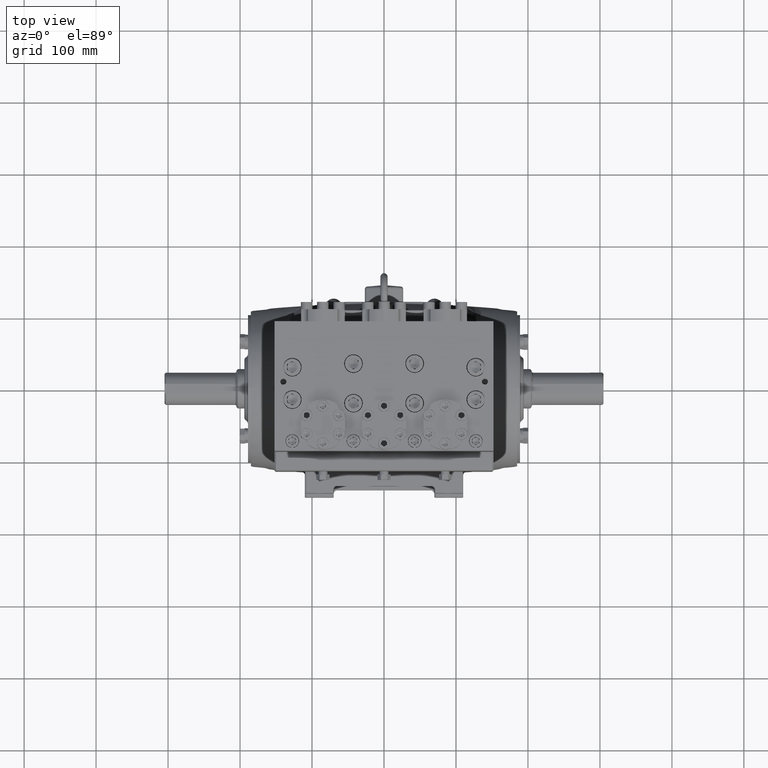
[diagram: clean part render]
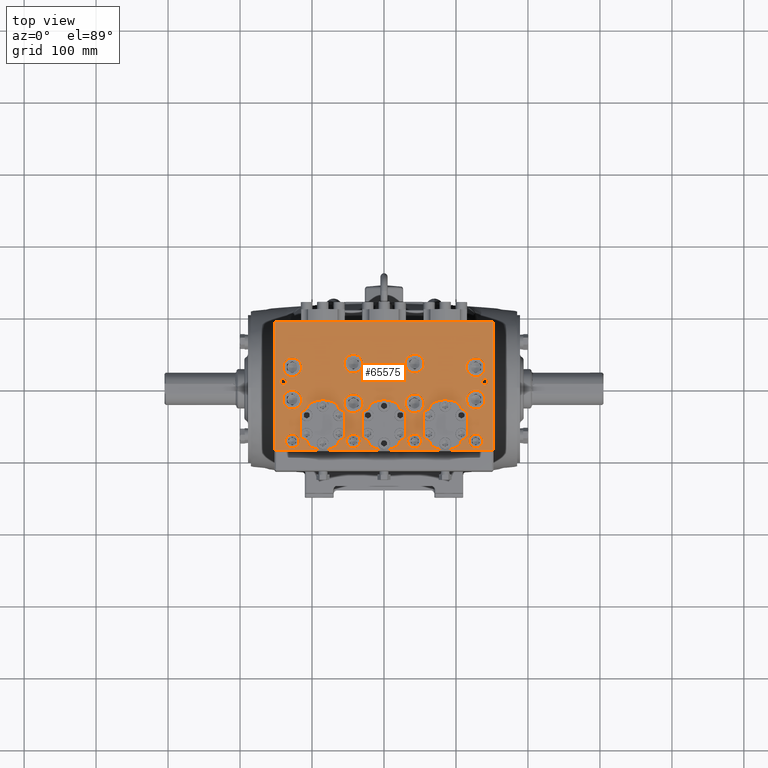
[diagram: same view with one face highlighted and labeled with its STEP entity id]
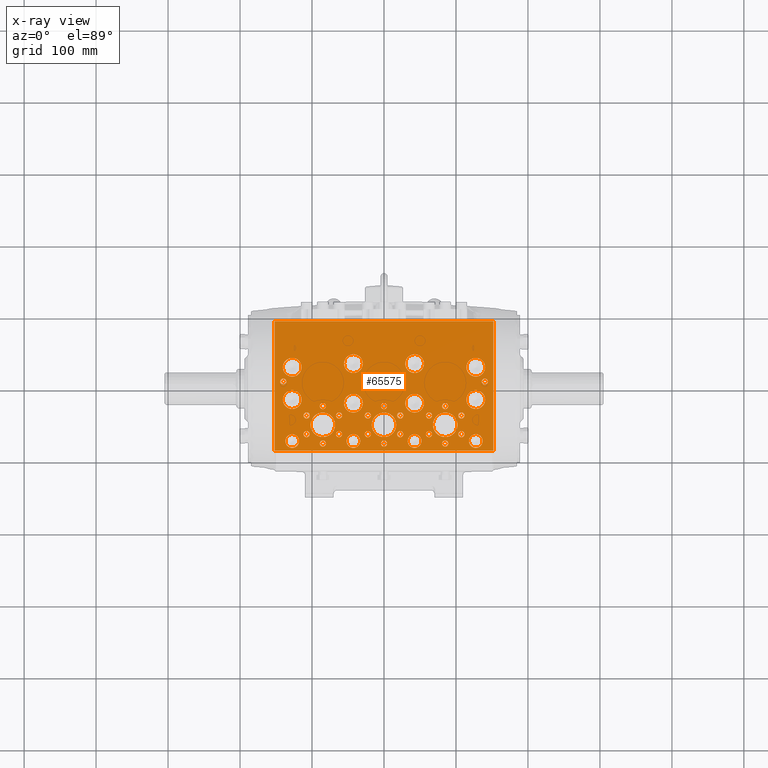
[diagram: x-ray of the same camera — body ghosted, the highlighted face saturated]
A machine part, top view. The second image highlights one B-rep face of the part: STEP entity #65575.
The next image is the same camera in x-ray: the body ghosted, the highlighted face saturated — about 0% of this face is hidden behind the body in this view.
In plain terms, the highlighted planar face has unit normal (0, 0, -1).
Its self-contained STEP definition (entity closure, byte-faithful):
#186 = FACE_BOUND ( 'NONE', #15405, .T. ) ;
#436 = DIRECTION ( 'NONE',  ( -0.000000000000000000, -0.000000000000000000, 1.000000000000000000 ) ) ;
#551 = DIRECTION ( 'NONE',  ( -0.000000000000000000, -0.000000000000000000, 1.000000000000000000 ) ) ;
#571 = CARTESIAN_POINT ( 'NONE',  ( 2.047244094488192001, -3.248031496062991241, 22.44094488188976655 ) ) ;
#707 = DIRECTION ( 'NONE',  ( 1.000000000000000000, 0.000000000000000000, 0.000000000000000000 ) ) ;
#882 = DIRECTION ( 'NONE',  ( 0.000000000000000000, 0.000000000000000000, 1.000000000000000000 ) ) ;
#921 = CIRCLE ( 'NONE', #37884, 0.6692913385826771977 ) ;
#983 = FACE_BOUND ( 'NONE', #44020, .T. ) ;
#1034 = DIRECTION ( 'NONE',  ( 1.000000000000000000, 0.000000000000000000, 0.000000000000000000 ) ) ;
#1074 = ORIENTED_EDGE ( 'NONE', *, *, #57729, .F. ) ;
#1366 = CARTESIAN_POINT ( 'NONE',  ( -5.679133858267713997, 1.113230334853013210E-15, 22.44094488188976655 ) ) ;
#1397 = PLANE ( 'NONE',  #16785 ) ;
#1461 = AXIS2_PLACEMENT_3D ( 'NONE', #71583, #77375, #1809 ) ;
#1476 = DIRECTION ( 'NONE',  ( -0.000000000000000000, -0.000000000000000000, 1.000000000000000000 ) ) ;
#1660 = CARTESIAN_POINT ( 'NONE',  ( 5.019685039370082258, -3.248031496062991241, 22.44094488188976655 ) ) ;
#1698 = CARTESIAN_POINT ( 'NONE',  ( 2.458353549041431401E-15, -2.362204724409447731, 22.44094488188976655 ) ) ;
#1809 = DIRECTION ( 'NONE',  ( 1.000000000000000000, 0.000000000000000000, 0.000000000000000000 ) ) ;
#1820 = DIRECTION ( 'NONE',  ( 1.000000000000000000, 0.000000000000000000, 0.000000000000000000 ) ) ;
#1846 = CARTESIAN_POINT ( 'NONE',  ( -1.053805531432888021, -1.850393700787402951, 22.44094488188976655 ) ) ;
#1917 = ORIENTED_EDGE ( 'NONE', *, *, #54976, .F. ) ;
#2104 = EDGE_CURVE ( 'NONE', #71356, #14807, #6092, .T. ) ;
#2182 = CIRCLE ( 'NONE', #81318, 0.1673228346456689108 ) ;
#2665 = DIRECTION ( 'NONE',  ( -0.000000000000000000, -0.000000000000000000, 1.000000000000000000 ) ) ;
#2706 = VERTEX_POINT ( 'NONE', #1846 ) ;
#2801 = VERTEX_POINT ( 'NONE', #40646 ) ;
#2853 = EDGE_CURVE ( 'NONE', #6727, #14560, #2182, .T. ) ;
#2897 = DIRECTION ( 'NONE',  ( 1.000000000000000000, 0.000000000000000000, 0.000000000000000000 ) ) ;
#2992 = CIRCLE ( 'NONE', #28561, 0.5118110236220471121 ) ;
#2997 = ORIENTED_EDGE ( 'NONE', *, *, #36746, .F. ) ;
#3007 = EDGE_CURVE ( 'NONE', #24591, #17143, #52311, .T. ) ;
#3066 = VERTEX_POINT ( 'NONE', #43094 ) ;
#3129 = CARTESIAN_POINT ( 'NONE',  ( -4.232939389700606014, -1.850393700787402951, 22.44094488188976655 ) ) ;
#3253 = CARTESIAN_POINT ( 'NONE',  ( 5.344488188976381338, 1.113230334853013210E-15, 22.44094488188976655 ) ) ;
#3417 = VERTEX_POINT ( 'NONE', #5447 ) ;
#3443 = CIRCLE ( 'NONE', #46932, 0.1673228346456689108 ) ;
#3462 = AXIS2_PLACEMENT_3D ( 'NONE', #34506, #23342, #28317 ) ;
#3505 = EDGE_CURVE ( 'NONE', #41159, #64953, #37920, .T. ) ;
#3758 = VERTEX_POINT ( 'NONE', #73054 ) ;
#3816 = ORIENTED_EDGE ( 'NONE', *, *, #40293, .F. ) ;
#3889 = EDGE_CURVE ( 'NONE', #36805, #16910, #65529, .T. ) ;
#4084 = VERTEX_POINT ( 'NONE', #29324 ) ;
#4140 = DIRECTION ( 'NONE',  ( -0.000000000000000000, -0.000000000000000000, 1.000000000000000000 ) ) ;
#4153 = AXIS2_PLACEMENT_3D ( 'NONE', #76851, #882, #76457 ) ;
#4276 = CARTESIAN_POINT ( 'NONE',  ( 2.185039370078742493, -1.181102362204723200, 22.44094488188976655 ) ) ;
#4281 = DIRECTION ( 'NONE',  ( -0.000000000000000000, -0.000000000000000000, 1.000000000000000000 ) ) ;
#4284 = DIRECTION ( 'NONE',  ( -0.000000000000000000, -0.000000000000000000, 1.000000000000000000 ) ) ;
#4356 = EDGE_CURVE ( 'NONE', #59757, #40121, #15517, .T. ) ;
#4464 = EDGE_CURVE ( 'NONE', #77336, #5374, #64279, .T. ) ;
#4492 = DIRECTION ( 'NONE',  ( 1.000000000000000000, 0.000000000000000000, 0.000000000000000000 ) ) ;
#4524 = ORIENTED_EDGE ( 'NONE', *, *, #12949, .F. ) ;
#4616 = DIRECTION ( 'NONE',  ( -0.000000000000000000, -0.000000000000000000, 1.000000000000000000 ) ) ;
#4886 = CARTESIAN_POINT ( 'NONE',  ( 0.6692913385826799733, -2.362204724409447731, 22.44094488188976655 ) ) ;
#4896 = CARTESIAN_POINT ( 'NONE',  ( -0.8864826967872192487, -1.850393700787402951, 22.44094488188976655 ) ) ;
#5215 = CARTESIAN_POINT ( 'NONE',  ( 4.232939389700610455, -2.874015748031493178, 22.44094488188976655 ) ) ;
#5308 = EDGE_CURVE ( 'NONE', #60771, #74494, #67059, .T. ) ;
#5374 = VERTEX_POINT ( 'NONE', #28544 ) ;
#5447 = CARTESIAN_POINT ( 'NONE',  ( 3.513779527559057758, -1.338582677165353285, 22.44094488188976655 ) ) ;
#5455 = DIRECTION ( 'NONE',  ( -0.000000000000000000, -0.000000000000000000, 1.000000000000000000 ) ) ;
#5527 = CARTESIAN_POINT ( 'NONE',  ( -0.1673228346456658855, -1.338582677165353285, 22.44094488188976655 ) ) ;
#5589 = CARTESIAN_POINT ( 'NONE',  ( 5.511811023622049888, 1.092739197465705287E-15, 22.44094488188976655 ) ) ;
#5692 = EDGE_LOOP ( 'NONE', ( #62205, #10975 ) ) ;
#5726 = EDGE_LOOP ( 'NONE', ( #65434, #33786 ) ) ;
#5884 = DIRECTION ( 'NONE',  ( -0.000000000000000000, -0.000000000000000000, 1.000000000000000000 ) ) ;
#5887 = EDGE_CURVE ( 'NONE', #70674, #52699, #9294, .T. ) ;
#5975 = FACE_BOUND ( 'NONE', #29640, .T. ) ;
#6083 = ORIENTED_EDGE ( 'NONE', *, *, #44143, .F. ) ;
#6092 = CIRCLE ( 'NONE', #13981, 0.5118110236220471121 ) ;
#6103 = CIRCLE ( 'NONE', #43056, 0.5118110236220471121 ) ;
#6136 = EDGE_CURVE ( 'NONE', #64441, #14396, #69932, .T. ) ;
#6150 = VERTEX_POINT ( 'NONE', #22048 ) ;
#6348 = VECTOR ( 'NONE', #66307, 39.37007874015748143 ) ;
#6380 = CIRCLE ( 'NONE', #76219, 0.1673228346456689108 ) ;
#6386 = FACE_BOUND ( 'NONE', #37656, .T. ) ;
#6405 = DIRECTION ( 'NONE',  ( -0.000000000000000000, -0.000000000000000000, 1.000000000000000000 ) ) ;
#6727 = VERTEX_POINT ( 'NONE', #42041 ) ;
#6858 = CARTESIAN_POINT ( 'NONE',  ( 5.019685039370081370, -0.9842519685039360366, 22.44094488188976655 ) ) ;
#6882 = ORIENTED_EDGE ( 'NONE', *, *, #7993, .F. ) ;
#7030 = AXIS2_PLACEMENT_3D ( 'NONE', #6858, #30850, #12257 ) ;
#7186 = AXIS2_PLACEMENT_3D ( 'NONE', #79692, #75137, #23951 ) ;
#7298 = CARTESIAN_POINT ( 'NONE',  ( -4.645669291338579754, -3.248031496062991241, 22.44094488188976655 ) ) ;
#7332 = DIRECTION ( 'NONE',  ( 1.000000000000000000, 0.000000000000000000, 0.000000000000000000 ) ) ;
#7436 = CIRCLE ( 'NONE', #3462, 0.1673228346456689108 ) ;
#7447 = ORIENTED_EDGE ( 'NONE', *, *, #48416, .F. ) ;
#7500 = DIRECTION ( 'NONE',  ( 0.000000000000000000, 0.000000000000000000, 1.000000000000000000 ) ) ;
#7512 = EDGE_LOOP ( 'NONE', ( #71034, #63394 ) ) ;
#7593 = FACE_BOUND ( 'NONE', #72375, .T. ) ;
#7612 = AXIS2_PLACEMENT_3D ( 'NONE', #7988, #26994, #33194 ) ;
#7635 = CARTESIAN_POINT ( 'NONE',  ( -2.292651161480496302, -1.850393700787395401, 22.44094488188976655 ) ) ;
#7707 = DIRECTION ( 'NONE',  ( 1.000000000000000000, 0.000000000000000000, 0.000000000000000000 ) ) ;
#7818 = EDGE_CURVE ( 'NONE', #48106, #38387, #60670, .T. ) ;
#7829 = DIRECTION ( 'NONE',  ( -0.000000000000000000, -0.000000000000000000, 1.000000000000000000 ) ) ;
#7988 = CARTESIAN_POINT ( 'NONE',  ( 2.459973996126171514, -2.874015748031499839, 22.44094488188976655 ) ) ;
#7993 = EDGE_CURVE ( 'NONE', #23329, #63775, #15894, .T. ) ;
#8035 = CARTESIAN_POINT ( 'NONE',  ( -3.346456692913383879, -2.362204724409447731, 22.44094488188976655 ) ) ;
#8123 = CARTESIAN_POINT ( 'NONE',  ( -3.346456692913383435, -3.385826771653542178, 22.44094488188976655 ) ) ;
#8226 = DIRECTION ( 'NONE',  ( 1.000000000000000000, 0.000000000000000000, 0.000000000000000000 ) ) ;
#8666 = CIRCLE ( 'NONE', #19252, 0.3740157480314958427 ) ;
#8709 = CIRCLE ( 'NONE', #49547, 0.1673228346456689108 ) ;
#8759 = ORIENTED_EDGE ( 'NONE', *, *, #35970, .F. ) ;
#8986 = CIRCLE ( 'NONE', #59067, 0.3740157480314958427 ) ;
#9000 = CARTESIAN_POINT ( 'NONE',  ( -5.344488188976377785, 1.092739197465705287E-15, 22.44094488188976655 ) ) ;
#9031 = AXIS2_PLACEMENT_3D ( 'NONE', #31856, #436, #24025 ) ;
#9134 = DIRECTION ( 'NONE',  ( 1.000000000000000000, 0.000000000000000000, 0.000000000000000000 ) ) ;
#9208 = EDGE_CURVE ( 'NONE', #14396, #64441, #27866, .T. ) ;
#9230 = DIRECTION ( 'NONE',  ( 1.000000000000000000, 0.000000000000000000, 0.000000000000000000 ) ) ;
#9271 = DIRECTION ( 'NONE',  ( 1.000000000000000000, 0.000000000000000000, 0.000000000000000000 ) ) ;
#9294 = CIRCLE ( 'NONE', #55425, 0.5118110236220471121 ) ;
#10068 = DIRECTION ( 'NONE',  ( 0.000000000000000000, 0.000000000000000000, 1.000000000000000000 ) ) ;
#10205 = ORIENTED_EDGE ( 'NONE', *, *, #37567, .F. ) ;
#10307 = CARTESIAN_POINT ( 'NONE',  ( 3.513779527559057758, -3.385826771653542178, 22.44094488188976655 ) ) ;
#10586 = CARTESIAN_POINT ( 'NONE',  ( 4.400262224346279893, -2.874015748031493178, 22.44094488188976655 ) ) ;
#10616 = DIRECTION ( 'NONE',  ( -0.000000000000000000, -0.000000000000000000, 1.000000000000000000 ) ) ;
#10709 = ORIENTED_EDGE ( 'NONE', *, *, #9208, .F. ) ;
#10975 = ORIENTED_EDGE ( 'NONE', *, *, #2853, .F. ) ;
#11001 = VERTEX_POINT ( 'NONE', #44329 ) ;
#11552 = DIRECTION ( 'NONE',  ( -0.000000000000000000, -0.000000000000000000, 1.000000000000000000 ) ) ;
#11975 = VERTEX_POINT ( 'NONE', #13053 ) ;
#12051 = ORIENTED_EDGE ( 'NONE', *, *, #58770, .F. ) ;
#12256 = CARTESIAN_POINT ( 'NONE',  ( -0.1673228346456658855, -3.385826771653542178, 22.44094488188976655 ) ) ;
#12257 = DIRECTION ( 'NONE',  ( 1.000000000000000000, 0.000000000000000000, 0.000000000000000000 ) ) ;
#12290 = ORIENTED_EDGE ( 'NONE', *, *, #36052, .F. ) ;
#12358 = CIRCLE ( 'NONE', #36042, 0.6692913385826775308 ) ;
#12410 = EDGE_LOOP ( 'NONE', ( #46230, #74424 ) ) ;
#12579 = FACE_BOUND ( 'NONE', #53299, .T. ) ;
#12755 = CARTESIAN_POINT ( 'NONE',  ( 0.7191598621415519199, -1.850393700787395401, 22.44094488188976655 ) ) ;
#12949 = EDGE_CURVE ( 'NONE', #2801, #70232, #76831, .T. ) ;
#13053 = CARTESIAN_POINT ( 'NONE',  ( -3.179133858267714441, -1.338582677165353285, 22.44094488188976655 ) ) ;
#13223 = CARTESIAN_POINT ( 'NONE',  ( -3.346456692913383435, -1.338582677165353285, 22.44094488188976655 ) ) ;
#13287 = VERTEX_POINT ( 'NONE', #48439 ) ;
#13377 = AXIS2_PLACEMENT_3D ( 'NONE', #5589, #6405, #31604 ) ;
#13502 = DIRECTION ( 'NONE',  ( -0.000000000000000000, -0.000000000000000000, 1.000000000000000000 ) ) ;
#13786 = FACE_BOUND ( 'NONE', #30271, .T. ) ;
#13893 = DIRECTION ( 'NONE',  ( -0.000000000000000000, -0.000000000000000000, 1.000000000000000000 ) ) ;
#13981 = AXIS2_PLACEMENT_3D ( 'NONE', #68082, #11552, #39849 ) ;
#14095 = CIRCLE ( 'NONE', #60206, 0.1673228346456689108 ) ;
#14223 = AXIS2_PLACEMENT_3D ( 'NONE', #55441, #41029, #17102 ) ;
#14396 = VERTEX_POINT ( 'NONE', #44991 ) ;
#14476 = CARTESIAN_POINT ( 'NONE',  ( -2.459973996126161300, -2.874015748031493178, 22.44094488188976655 ) ) ;
#14560 = VERTEX_POINT ( 'NONE', #74263 ) ;
#14636 = CIRCLE ( 'NONE', #52848, 0.3740157480314961203 ) ;
#14674 = VERTEX_POINT ( 'NONE', #31317 ) ;
#14807 = VERTEX_POINT ( 'NONE', #44884 ) ;
#14849 = CARTESIAN_POINT ( 'NONE',  ( -0.6692913385826750883, -2.362204724409447731, 22.44094488188976655 ) ) ;
#14860 = EDGE_LOOP ( 'NONE', ( #22425, #10205 ) ) ;
#14992 = CARTESIAN_POINT ( 'NONE',  ( 5.984251968503938812, -3.779527559055117170, 22.44094488188976655 ) ) ;
#15149 = EDGE_CURVE ( 'NONE', #38387, #48106, #31349, .T. ) ;
#15254 = AXIS2_PLACEMENT_3D ( 'NONE', #61758, #38221, #25030 ) ;
#15328 = CARTESIAN_POINT ( 'NONE',  ( 1.673228346456696158, -3.248031496062991241, 22.44094488188976655 ) ) ;
#15405 = EDGE_LOOP ( 'NONE', ( #50145, #68389 ) ) ;
#15430 = CARTESIAN_POINT ( 'NONE',  ( -1.673228346456690385, -3.248031496062991241, 22.44094488188976655 ) ) ;
#15517 = CIRCLE ( 'NONE', #26101, 0.1673228346456689108 ) ;
#15600 = CARTESIAN_POINT ( 'NONE',  ( -0.8864826967872148078, -2.874015748031499839, 22.44094488188976655 ) ) ;
#15770 = DIRECTION ( 'NONE',  ( 1.000000000000000000, 0.000000000000000000, 0.000000000000000000 ) ) ;
#15783 = CARTESIAN_POINT ( 'NONE',  ( 5.984251968503938812, -3.779527559055117170, 22.44094488188976655 ) ) ;
#15894 = CIRCLE ( 'NONE', #56717, 0.1673228346456689108 ) ;
#15948 = DIRECTION ( 'NONE',  ( -0.000000000000000000, -0.000000000000000000, 1.000000000000000000 ) ) ;
#16002 = EDGE_CURVE ( 'NONE', #81574, #22413, #78950, .T. ) ;
#16085 = CARTESIAN_POINT ( 'NONE',  ( -2.677165354330706570, -2.362204724409447731, 22.44094488188976655 ) ) ;
#16095 = EDGE_CURVE ( 'NONE', #60679, #67057, #55154, .T. ) ;
#16107 = DIRECTION ( 'NONE',  ( -0.000000000000000000, -0.000000000000000000, 1.000000000000000000 ) ) ;
#16154 = CARTESIAN_POINT ( 'NONE',  ( 1.053805531432889797, -1.850393700787395401, 22.44094488188976655 ) ) ;
#16368 = EDGE_CURVE ( 'NONE', #67285, #53264, #16960, .T. ) ;
#16408 = ORIENTED_EDGE ( 'NONE', *, *, #62451, .F. ) ;
#16439 = AXIS2_PLACEMENT_3D ( 'NONE', #39899, #70061, #51475 ) ;
#16690 = DIRECTION ( 'NONE',  ( 1.000000000000000000, 0.000000000000000000, 0.000000000000000000 ) ) ;
#16695 = DIRECTION ( 'NONE',  ( -0.000000000000000000, -0.000000000000000000, 1.000000000000000000 ) ) ;
#16785 = AXIS2_PLACEMENT_3D ( 'NONE', #37769, #25391, #19203 ) ;
#16910 = VERTEX_POINT ( 'NONE', #32578 ) ;
#16960 = CIRCLE ( 'NONE', #27499, 0.1673228346456689108 ) ;
#17003 = DIRECTION ( 'NONE',  ( -0.000000000000000000, -0.000000000000000000, 1.000000000000000000 ) ) ;
#17013 = DIRECTION ( 'NONE',  ( 1.000000000000000000, 0.000000000000000000, 0.000000000000000000 ) ) ;
#17102 = DIRECTION ( 'NONE',  ( 1.000000000000000000, 0.000000000000000000, 0.000000000000000000 ) ) ;
#17143 = VERTEX_POINT ( 'NONE', #9000 ) ;
#17207 = ORIENTED_EDGE ( 'NONE', *, *, #16368, .F. ) ;
#17481 = DIRECTION ( 'NONE',  ( 1.000000000000000000, 0.000000000000000000, 0.000000000000000000 ) ) ;
#17589 = DIRECTION ( 'NONE',  ( -0.000000000000000000, -0.000000000000000000, 1.000000000000000000 ) ) ;
#17912 = CARTESIAN_POINT ( 'NONE',  ( 0.1673228346456719084, -1.338582677165353285, 22.44094488188976655 ) ) ;
#18192 = EDGE_LOOP ( 'NONE', ( #17207, #31949 ) ) ;
#18345 = CARTESIAN_POINT ( 'NONE',  ( 1.673228346456695492, -1.181102362204723200, 22.44094488188976655 ) ) ;
#18353 = AXIS2_PLACEMENT_3D ( 'NONE', #72812, #53790, #47207 ) ;
#18444 = CARTESIAN_POINT ( 'NONE',  ( -1.673228346456690607, -1.181102362204723200, 22.44094488188976655 ) ) ;
#18506 = ORIENTED_EDGE ( 'NONE', *, *, #49728, .F. ) ;
#18604 = AXIS2_PLACEMENT_3D ( 'NONE', #66316, #58492, #20972 ) ;
#18679 = VERTEX_POINT ( 'NONE', #33805 ) ;
#19071 = CIRCLE ( 'NONE', #55941, 0.1673228346456689108 ) ;
#19203 = DIRECTION ( 'NONE',  ( -1.000000000000000000, 0.000000000000000000, -0.000000000000000000 ) ) ;
#19252 = AXIS2_PLACEMENT_3D ( 'NONE', #43222, #36218, #56395 ) ;
#19289 = CARTESIAN_POINT ( 'NONE',  ( 2.677165354330711011, -2.362204724409447731, 22.44094488188976655 ) ) ;
#19327 = CARTESIAN_POINT ( 'NONE',  ( -1.673228346456690385, 0.9842519685039381461, 22.44094488188976655 ) ) ;
#19611 = FACE_BOUND ( 'NONE', #68130, .T. ) ;
#19700 = DIRECTION ( 'NONE',  ( 1.000000000000000000, 0.000000000000000000, 0.000000000000000000 ) ) ;
#19842 = DIRECTION ( 'NONE',  ( 1.000000000000000000, 0.000000000000000000, 0.000000000000000000 ) ) ;
#20014 = FACE_BOUND ( 'NONE', #41745, .T. ) ;
#20022 = DIRECTION ( 'NONE',  ( 1.000000000000000000, 0.000000000000000000, 0.000000000000000000 ) ) ;
#20330 = CARTESIAN_POINT ( 'NONE',  ( -5.019685039370076929, -0.9842519685039360366, 22.44094488188976655 ) ) ;
#20400 = EDGE_CURVE ( 'NONE', #71761, #72192, #29140, .T. ) ;
#20833 = CARTESIAN_POINT ( 'NONE',  ( -5.393700787401572327, -3.248031496062991241, 22.44094488188976655 ) ) ;
#20972 = DIRECTION ( 'NONE',  ( 1.000000000000000000, 0.000000000000000000, 0.000000000000000000 ) ) ;
#20984 = EDGE_CURVE ( 'NONE', #33155, #38133, #14636, .T. ) ;
#21089 = ORIENTED_EDGE ( 'NONE', *, *, #34930, .F. ) ;
#21355 = ORIENTED_EDGE ( 'NONE', *, *, #70164, .F. ) ;
#21596 = VERTEX_POINT ( 'NONE', #38671 ) ;
#21702 = EDGE_CURVE ( 'NONE', #3758, #78878, #71528, .T. ) ;
#21762 = LINE ( 'NONE', #46507, #6348 ) ;
#21853 = AXIS2_PLACEMENT_3D ( 'NONE', #70567, #7829, #8226 ) ;
#21969 = AXIS2_PLACEMENT_3D ( 'NONE', #71304, #10068, #16690 ) ;
#22048 = CARTESIAN_POINT ( 'NONE',  ( -0.7191598621415459247, -2.874015748031499839, 22.44094488188976655 ) ) ;
#22357 = DIRECTION ( 'NONE',  ( 1.000000000000000000, 0.000000000000000000, 0.000000000000000000 ) ) ;
#22413 = VERTEX_POINT ( 'NONE', #12256 ) ;
#22425 = ORIENTED_EDGE ( 'NONE', *, *, #72213, .F. ) ;
#22754 = ORIENTED_EDGE ( 'NONE', *, *, #5887, .F. ) ;
#22941 = AXIS2_PLACEMENT_3D ( 'NONE', #45129, #36079, #73664 ) ;
#23087 = EDGE_CURVE ( 'NONE', #40121, #59757, #71635, .T. ) ;
#23243 = ORIENTED_EDGE ( 'NONE', *, *, #33878, .F. ) ;
#23329 = VERTEX_POINT ( 'NONE', #28098 ) ;
#23342 = DIRECTION ( 'NONE',  ( -0.000000000000000000, -0.000000000000000000, 1.000000000000000000 ) ) ;
#23716 = CARTESIAN_POINT ( 'NONE',  ( -4.507874015748029706, 0.7874015748031507611, 22.44094488188976655 ) ) ;
#23775 = CARTESIAN_POINT ( 'NONE',  ( 4.507874015748033258, 0.7874015748031507611, 22.44094488188976655 ) ) ;
#23951 = DIRECTION ( 'NONE',  ( 1.000000000000000000, 0.000000000000000000, 0.000000000000000000 ) ) ;
#24025 = DIRECTION ( 'NONE',  ( 1.000000000000000000, 0.000000000000000000, 0.000000000000000000 ) ) ;
#24195 = CARTESIAN_POINT ( 'NONE',  ( 4.507874015748033258, -0.9842519685039360366, 22.44094488188976655 ) ) ;
#24297 = CARTESIAN_POINT ( 'NONE',  ( -3.513779527559052429, -3.385826771653542178, 22.44094488188976655 ) ) ;
#24325 = CARTESIAN_POINT ( 'NONE',  ( 0.7191598621415560277, -2.874015748031493178, 22.44094488188976655 ) ) ;
#24569 = ORIENTED_EDGE ( 'NONE', *, *, #71258, .F. ) ;
#24591 = VERTEX_POINT ( 'NONE', #1366 ) ;
#24835 = ORIENTED_EDGE ( 'NONE', *, *, #63861, .F. ) ;
#24912 = AXIS2_PLACEMENT_3D ( 'NONE', #20330, #39289, #64460 ) ;
#24977 = FACE_BOUND ( 'NONE', #71830, .T. ) ;
#25030 = DIRECTION ( 'NONE',  ( 1.000000000000000000, 0.000000000000000000, 0.000000000000000000 ) ) ;
#25104 = CIRCLE ( 'NONE', #71216, 0.1673228346456689108 ) ;
#25113 = AXIS2_PLACEMENT_3D ( 'NONE', #8035, #33233, #1820 ) ;
#25116 = DIRECTION ( 'NONE',  ( -0.000000000000000000, -0.000000000000000000, 1.000000000000000000 ) ) ;
#25354 = CARTESIAN_POINT ( 'NONE',  ( -5.531496062992124152, -0.9842519685039360366, 22.44094488188976655 ) ) ;
#25391 = DIRECTION ( 'NONE',  ( 0.000000000000000000, 0.000000000000000000, -1.000000000000000000 ) ) ;
#25516 = CARTESIAN_POINT ( 'NONE',  ( 4.232939389700606903, -1.850393700787395401, 22.44094488188976655 ) ) ;
#25529 = VECTOR ( 'NONE', #39740, 39.37007874015748143 ) ;
#25705 = CARTESIAN_POINT ( 'NONE',  ( -5.019685039370076041, -3.248031496062991241, 22.44094488188976655 ) ) ;
#25793 = FACE_BOUND ( 'NONE', #42920, .T. ) ;
#25804 = ORIENTED_EDGE ( 'NONE', *, *, #75028, .F. ) ;
#26074 = DIRECTION ( 'NONE',  ( -0.000000000000000000, -0.000000000000000000, 1.000000000000000000 ) ) ;
#26101 = AXIS2_PLACEMENT_3D ( 'NONE', #79184, #62508, #61691 ) ;
#26162 = LINE ( 'NONE', #71113, #25529 ) ;
#26200 = FACE_BOUND ( 'NONE', #78909, .T. ) ;
#26207 = ORIENTED_EDGE ( 'NONE', *, *, #64162, .F. ) ;
#26592 = DIRECTION ( 'NONE',  ( 1.000000000000000000, 0.000000000000000000, 0.000000000000000000 ) ) ;
#26605 = AXIS2_PLACEMENT_3D ( 'NONE', #18345, #56653, #50467 ) ;
#26612 = FACE_BOUND ( 'NONE', #33050, .T. ) ;
#26700 = ORIENTED_EDGE ( 'NONE', *, *, #68689, .F. ) ;
#26940 = CIRCLE ( 'NONE', #37485, 0.3740157480314958427 ) ;
#26994 = DIRECTION ( 'NONE',  ( -0.000000000000000000, -0.000000000000000000, 1.000000000000000000 ) ) ;
#27331 = CIRCLE ( 'NONE', #14223, 0.3740157480314963978 ) ;
#27499 = AXIS2_PLACEMENT_3D ( 'NONE', #58412, #1476, #78259 ) ;
#27508 = VERTEX_POINT ( 'NONE', #74757 ) ;
#27866 = CIRCLE ( 'NONE', #4153, 0.6692913385826771977 ) ;
#27932 = DIRECTION ( 'NONE',  ( 1.000000000000000000, 0.000000000000000000, 0.000000000000000000 ) ) ;
#28098 = CARTESIAN_POINT ( 'NONE',  ( 4.065616555054941905, -2.874015748031493178, 22.44094488188976655 ) ) ;
#28158 = AXIS2_PLACEMENT_3D ( 'NONE', #67379, #29846, #54971 ) ;
#28317 = DIRECTION ( 'NONE',  ( 1.000000000000000000, 0.000000000000000000, 0.000000000000000000 ) ) ;
#28461 = CARTESIAN_POINT ( 'NONE',  ( -4.065616555054932135, -2.874015748031499839, 22.44094488188976655 ) ) ;
#28544 = CARTESIAN_POINT ( 'NONE',  ( 2.627296830771840064, -2.874015748031499839, 22.44094488188976655 ) ) ;
#28561 = AXIS2_PLACEMENT_3D ( 'NONE', #57633, #13893, #7707 ) ;
#28632 = VERTEX_POINT ( 'NONE', #31306 ) ;
#28769 = EDGE_CURVE ( 'NONE', #14807, #71356, #6103, .T. ) ;
#29140 = CIRCLE ( 'NONE', #39607, 0.1673228346456686333 ) ;
#29209 = AXIS2_PLACEMENT_3D ( 'NONE', #4896, #30120, #54422 ) ;
#29324 = CARTESIAN_POINT ( 'NONE',  ( 5.531496062992128593, -0.9842519685039360366, 22.44094488188976655 ) ) ;
#29349 = DIRECTION ( 'NONE',  ( 1.000000000000000000, 0.000000000000000000, 0.000000000000000000 ) ) ;
#29388 = DIRECTION ( 'NONE',  ( -0.000000000000000000, -0.000000000000000000, 1.000000000000000000 ) ) ;
#29463 = CARTESIAN_POINT ( 'NONE',  ( -3.513779527559052429, -1.338582677165353285, 22.44094488188976655 ) ) ;
#29495 = CARTESIAN_POINT ( 'NONE',  ( -4.232939389700606014, -1.850393700787402951, 22.44094488188976655 ) ) ;
#29556 = DIRECTION ( 'NONE',  ( -0.000000000000000000, -0.000000000000000000, 1.000000000000000000 ) ) ;
#29640 = EDGE_LOOP ( 'NONE', ( #56225, #6882 ) ) ;
#29846 = DIRECTION ( 'NONE',  ( -0.000000000000000000, -0.000000000000000000, 1.000000000000000000 ) ) ;
#29950 = ORIENTED_EDGE ( 'NONE', *, *, #36154, .F. ) ;
#30025 = DIRECTION ( 'NONE',  ( -0.000000000000000000, -0.000000000000000000, 1.000000000000000000 ) ) ;
#30044 = CARTESIAN_POINT ( 'NONE',  ( 2.627296830771835623, -1.850393700787402951, 22.44094488188976655 ) ) ;
#30087 = EDGE_CURVE ( 'NONE', #11001, #76037, #26162, .T. ) ;
#30120 = DIRECTION ( 'NONE',  ( -0.000000000000000000, -0.000000000000000000, 1.000000000000000000 ) ) ;
#30129 = DIRECTION ( 'NONE',  ( -0.000000000000000000, -0.000000000000000000, 1.000000000000000000 ) ) ;
#30271 = EDGE_LOOP ( 'NONE', ( #3816, #32813 ) ) ;
#30820 = ORIENTED_EDGE ( 'NONE', *, *, #3505, .F. ) ;
#30850 = DIRECTION ( 'NONE',  ( -0.000000000000000000, -0.000000000000000000, 1.000000000000000000 ) ) ;
#30902 = ORIENTED_EDGE ( 'NONE', *, *, #4356, .F. ) ;
#31075 = EDGE_CURVE ( 'NONE', #28632, #41955, #19071, .T. ) ;
#31179 = FACE_BOUND ( 'NONE', #43464, .T. ) ;
#31284 = EDGE_CURVE ( 'NONE', #67057, #60679, #58601, .T. ) ;
#31306 = CARTESIAN_POINT ( 'NONE',  ( -2.627296830771830294, -2.874015748031493178, 22.44094488188976655 ) ) ;
#31317 = CARTESIAN_POINT ( 'NONE',  ( 5.984251968503938812, 3.307086614173229133, 22.44094488188976655 ) ) ;
#31349 = CIRCLE ( 'NONE', #73535, 0.5118110236220471121 ) ;
#31566 = EDGE_LOOP ( 'NONE', ( #16408, #1074 ) ) ;
#31583 = FACE_BOUND ( 'NONE', #31566, .T. ) ;
#31604 = DIRECTION ( 'NONE',  ( 1.000000000000000000, 0.000000000000000000, 0.000000000000000000 ) ) ;
#31856 = CARTESIAN_POINT ( 'NONE',  ( 3.004723147774284045E-15, -3.385826771653542178, 22.44094488188976655 ) ) ;
#31949 = ORIENTED_EDGE ( 'NONE', *, *, #50042, .F. ) ;
#32387 = FACE_BOUND ( 'NONE', #61105, .T. ) ;
#32508 = ORIENTED_EDGE ( 'NONE', *, *, #20984, .F. ) ;
#32578 = CARTESIAN_POINT ( 'NONE',  ( 1.053805531432893794, -2.874015748031493178, 22.44094488188976655 ) ) ;
#32796 = FACE_OUTER_BOUND ( 'NONE', #57620, .T. ) ;
#32813 = ORIENTED_EDGE ( 'NONE', *, *, #44483, .F. ) ;
#33032 = CARTESIAN_POINT ( 'NONE',  ( -2.185039370078737608, -1.181102362204723200, 22.44094488188976655 ) ) ;
#33050 = EDGE_LOOP ( 'NONE', ( #40772, #64307 ) ) ;
#33155 = VERTEX_POINT ( 'NONE', #69538 ) ;
#33194 = DIRECTION ( 'NONE',  ( 1.000000000000000000, 0.000000000000000000, 0.000000000000000000 ) ) ;
#33215 = DIRECTION ( 'NONE',  ( -0.000000000000000000, -0.000000000000000000, 1.000000000000000000 ) ) ;
#33233 = DIRECTION ( 'NONE',  ( 0.000000000000000000, 0.000000000000000000, 1.000000000000000000 ) ) ;
#33316 = EDGE_CURVE ( 'NONE', #13287, #50331, #26940, .T. ) ;
#33478 = DIRECTION ( 'NONE',  ( -0.000000000000000000, -0.000000000000000000, 1.000000000000000000 ) ) ;
#33503 = DIRECTION ( 'NONE',  ( 1.000000000000000000, 0.000000000000000000, 0.000000000000000000 ) ) ;
#33586 = ORIENTED_EDGE ( 'NONE', *, *, #6136, .F. ) ;
#33606 = DIRECTION ( 'NONE',  ( -0.000000000000000000, -0.000000000000000000, 1.000000000000000000 ) ) ;
#33737 = VERTEX_POINT ( 'NONE', #7298 ) ;
#33786 = ORIENTED_EDGE ( 'NONE', *, *, #31075, .F. ) ;
#33805 = CARTESIAN_POINT ( 'NONE',  ( 5.531496062992128593, 0.7874015748031507611, 22.44094488188976655 ) ) ;
#33835 = EDGE_CURVE ( 'NONE', #14560, #6727, #59952, .T. ) ;
#33878 = EDGE_CURVE ( 'NONE', #18679, #34028, #81105, .T. ) ;
#33886 = ORIENTED_EDGE ( 'NONE', *, *, #3007, .F. ) ;
#33935 = AXIS2_PLACEMENT_3D ( 'NONE', #80965, #61122, #42961 ) ;
#33990 = AXIS2_PLACEMENT_3D ( 'NONE', #15600, #34584, #65532 ) ;
#34028 = VERTEX_POINT ( 'NONE', #23775 ) ;
#34109 = ORIENTED_EDGE ( 'NONE', *, *, #75405, .F. ) ;
#34362 = EDGE_LOOP ( 'NONE', ( #29950, #12290 ) ) ;
#34506 = CARTESIAN_POINT ( 'NONE',  ( -4.232939389700601573, -2.874015748031499839, 22.44094488188976655 ) ) ;
#34584 = DIRECTION ( 'NONE',  ( -0.000000000000000000, -0.000000000000000000, 1.000000000000000000 ) ) ;
#34714 = DIRECTION ( 'NONE',  ( -0.000000000000000000, -0.000000000000000000, 1.000000000000000000 ) ) ;
#34791 = CIRCLE ( 'NONE', #22941, 0.1673228346456689108 ) ;
#34930 = EDGE_CURVE ( 'NONE', #45224, #39106, #81217, .T. ) ;
#35131 = CARTESIAN_POINT ( 'NONE',  ( -3.346456692913383435, -1.338582677165353285, 22.44094488188976655 ) ) ;
#35270 = CIRCLE ( 'NONE', #40563, 0.5118110236220471121 ) ;
#35360 = CIRCLE ( 'NONE', #81542, 0.5118110236220476672 ) ;
#35748 = VERTEX_POINT ( 'NONE', #3253 ) ;
#35931 = EDGE_LOOP ( 'NONE', ( #61593, #42298 ) ) ;
#35970 = EDGE_CURVE ( 'NONE', #16910, #36805, #73423, .T. ) ;
#36042 = AXIS2_PLACEMENT_3D ( 'NONE', #47907, #80156, #22357 ) ;
#36052 = EDGE_CURVE ( 'NONE', #53432, #3066, #66782, .T. ) ;
#36079 = DIRECTION ( 'NONE',  ( -0.000000000000000000, -0.000000000000000000, 1.000000000000000000 ) ) ;
#36154 = EDGE_CURVE ( 'NONE', #3066, #53432, #921, .T. ) ;
#36218 = DIRECTION ( 'NONE',  ( -0.000000000000000000, -0.000000000000000000, 1.000000000000000000 ) ) ;
#36368 = EDGE_CURVE ( 'NONE', #52699, #70674, #72101, .T. ) ;
#36528 = AXIS2_PLACEMENT_3D ( 'NONE', #41344, #48354, #17013 ) ;
#36741 = CARTESIAN_POINT ( 'NONE',  ( -2.185039370078737608, 0.9842519685039381461, 22.44094488188976655 ) ) ;
#36746 = EDGE_CURVE ( 'NONE', #48522, #38486, #70854, .T. ) ;
#36805 = VERTEX_POINT ( 'NONE', #24325 ) ;
#37403 = DIRECTION ( 'NONE',  ( -0.000000000000000000, -0.000000000000000000, 1.000000000000000000 ) ) ;
#37485 = AXIS2_PLACEMENT_3D ( 'NONE', #15430, #72793, #9230 ) ;
#37567 = EDGE_CURVE ( 'NONE', #27508, #6150, #39283, .T. ) ;
#37656 = EDGE_LOOP ( 'NONE', ( #22754, #38748 ) ) ;
#37769 = CARTESIAN_POINT ( 'NONE',  ( -5.984251968503935259, 3.307086614173229133, 22.44094488188976655 ) ) ;
#37884 = AXIS2_PLACEMENT_3D ( 'NONE', #63682, #77726, #38920 ) ;
#37920 = CIRCLE ( 'NONE', #62944, 0.3740157480314963978 ) ;
#38078 = CIRCLE ( 'NONE', #39339, 0.1673228346456689108 ) ;
#38133 = VERTEX_POINT ( 'NONE', #571 ) ;
#38154 = DIRECTION ( 'NONE',  ( -0.000000000000000000, -0.000000000000000000, 1.000000000000000000 ) ) ;
#38221 = DIRECTION ( 'NONE',  ( -0.000000000000000000, -0.000000000000000000, 1.000000000000000000 ) ) ;
#38296 = EDGE_CURVE ( 'NONE', #80058, #11975, #38078, .T. ) ;
#38316 = DIRECTION ( 'NONE',  ( -0.000000000000000000, -0.000000000000000000, 1.000000000000000000 ) ) ;
#38387 = VERTEX_POINT ( 'NONE', #33032 ) ;
#38486 = VERTEX_POINT ( 'NONE', #24297 ) ;
#38548 = EDGE_LOOP ( 'NONE', ( #48375, #38714 ) ) ;
#38671 = CARTESIAN_POINT ( 'NONE',  ( 1.161417322834648269, -1.181102362204723200, 22.44094488188976655 ) ) ;
#38701 = ORIENTED_EDGE ( 'NONE', *, *, #75876, .T. ) ;
#38714 = ORIENTED_EDGE ( 'NONE', *, *, #45836, .F. ) ;
#38748 = ORIENTED_EDGE ( 'NONE', *, *, #36368, .F. ) ;
#38920 = DIRECTION ( 'NONE',  ( 1.000000000000000000, 0.000000000000000000, 0.000000000000000000 ) ) ;
#38952 = VERTEX_POINT ( 'NONE', #24195 ) ;
#39003 = DIRECTION ( 'NONE',  ( 1.000000000000000000, 0.000000000000000000, 0.000000000000000000 ) ) ;
#39106 = VERTEX_POINT ( 'NONE', #75796 ) ;
#39283 = CIRCLE ( 'NONE', #33990, 0.1673228346456689108 ) ;
#39289 = DIRECTION ( 'NONE',  ( -0.000000000000000000, -0.000000000000000000, 1.000000000000000000 ) ) ;
#39339 = AXIS2_PLACEMENT_3D ( 'NONE', #13223, #45786, #19842 ) ;
#39607 = AXIS2_PLACEMENT_3D ( 'NONE', #52419, #33478, #2897 ) ;
#39657 = CARTESIAN_POINT ( 'NONE',  ( 3.179133858267720214, -1.338582677165353285, 22.44094488188976655 ) ) ;
#39736 = CIRCLE ( 'NONE', #29209, 0.1673228346456689108 ) ;
#39740 = DIRECTION ( 'NONE',  ( 1.000000000000000000, 0.000000000000000000, 0.000000000000000000 ) ) ;
#39761 = LINE ( 'NONE', #14992, #74361 ) ;
#39849 = DIRECTION ( 'NONE',  ( 1.000000000000000000, 0.000000000000000000, 0.000000000000000000 ) ) ;
#39899 = CARTESIAN_POINT ( 'NONE',  ( 5.511811023622049888, 1.092739197465705287E-15, 22.44094488188976655 ) ) ;
#40121 = VERTEX_POINT ( 'NONE', #75809 ) ;
#40293 = EDGE_CURVE ( 'NONE', #3417, #71257, #81630, .T. ) ;
#40394 = AXIS2_PLACEMENT_3D ( 'NONE', #69670, #38316, #7332 ) ;
#40495 = DIRECTION ( 'NONE',  ( -0.000000000000000000, -0.000000000000000000, 1.000000000000000000 ) ) ;
#40563 = AXIS2_PLACEMENT_3D ( 'NONE', #54932, #17003, #15770 ) ;
#40646 = CARTESIAN_POINT ( 'NONE',  ( 4.400262224346275453, -1.850393700787395401, 22.44094488188976655 ) ) ;
#40756 = DIRECTION ( 'NONE',  ( 1.000000000000000000, 0.000000000000000000, 0.000000000000000000 ) ) ;
#40772 = ORIENTED_EDGE ( 'NONE', *, *, #31284, .F. ) ;
#40793 = EDGE_CURVE ( 'NONE', #50331, #13287, #44699, .T. ) ;
#41029 = DIRECTION ( 'NONE',  ( -0.000000000000000000, -0.000000000000000000, 1.000000000000000000 ) ) ;
#41159 = VERTEX_POINT ( 'NONE', #79063 ) ;
#41196 = AXIS2_PLACEMENT_3D ( 'NONE', #25516, #25116, #707 ) ;
#41344 = CARTESIAN_POINT ( 'NONE',  ( 1.673228346456695270, 0.9842519685039381461, 22.44094488188976655 ) ) ;
#41394 = ORIENTED_EDGE ( 'NONE', *, *, #47209, .F. ) ;
#41739 = DIRECTION ( 'NONE',  ( 1.000000000000000000, 0.000000000000000000, 0.000000000000000000 ) ) ;
#41745 = EDGE_LOOP ( 'NONE', ( #34109, #68421 ) ) ;
#41849 = DIRECTION ( 'NONE',  ( 1.000000000000000000, 0.000000000000000000, 0.000000000000000000 ) ) ;
#41955 = VERTEX_POINT ( 'NONE', #56814 ) ;
#41971 = CARTESIAN_POINT ( 'NONE',  ( -5.984251968503935259, 3.307086614173229133, 22.44094488188976655 ) ) ;
#42041 = CARTESIAN_POINT ( 'NONE',  ( -4.400262224346274564, -1.850393700787402951, 22.44094488188976655 ) ) ;
#42298 = ORIENTED_EDGE ( 'NONE', *, *, #57739, .F. ) ;
#42317 = EDGE_LOOP ( 'NONE', ( #23243, #41394 ) ) ;
#42321 = ORIENTED_EDGE ( 'NONE', *, *, #65665, .F. ) ;
#42329 = DIRECTION ( 'NONE',  ( 1.000000000000000000, 0.000000000000000000, 0.000000000000000000 ) ) ;
#42384 = DIRECTION ( 'NONE',  ( 1.000000000000000000, 0.000000000000000000, 0.000000000000000000 ) ) ;
#42619 = CIRCLE ( 'NONE', #7030, 0.5118110236220476672 ) ;
#42920 = EDGE_LOOP ( 'NONE', ( #72136, #33886 ) ) ;
#42961 = DIRECTION ( 'NONE',  ( 1.000000000000000000, 0.000000000000000000, 0.000000000000000000 ) ) ;
#43049 = CARTESIAN_POINT ( 'NONE',  ( -2.047244094488186228, -3.248031496062991241, 22.44094488188976655 ) ) ;
#43056 = AXIS2_PLACEMENT_3D ( 'NONE', #19327, #58060, #44471 ) ;
#43094 = CARTESIAN_POINT ( 'NONE',  ( 4.015748031496065629, -2.362204724409447731, 22.44094488188976655 ) ) ;
#43188 = DIRECTION ( 'NONE',  ( 1.000000000000000000, 0.000000000000000000, 0.000000000000000000 ) ) ;
#43222 = CARTESIAN_POINT ( 'NONE',  ( -5.019685039370076041, -3.248031496062991241, 22.44094488188976655 ) ) ;
#43464 = EDGE_LOOP ( 'NONE', ( #18506, #75345 ) ) ;
#43806 = VERTEX_POINT ( 'NONE', #70550 ) ;
#43864 = CARTESIAN_POINT ( 'NONE',  ( -0.7191598621415503656, -1.850393700787402951, 22.44094488188976655 ) ) ;
#43942 = FACE_BOUND ( 'NONE', #52642, .T. ) ;
#44020 = EDGE_LOOP ( 'NONE', ( #72984, #58003 ) ) ;
#44143 = EDGE_CURVE ( 'NONE', #39106, #45224, #2992, .T. ) ;
#44329 = CARTESIAN_POINT ( 'NONE',  ( -5.984251968503935259, -3.779527559055117170, 22.44094488188976655 ) ) ;
#44384 = EDGE_CURVE ( 'NONE', #17143, #24591, #74366, .T. ) ;
#44429 = CARTESIAN_POINT ( 'NONE',  ( 5.019685039370081370, -0.9842519685039360366, 22.44094488188976655 ) ) ;
#44464 = AXIS2_PLACEMENT_3D ( 'NONE', #62291, #30129, #4492 ) ;
#44471 = DIRECTION ( 'NONE',  ( 1.000000000000000000, 0.000000000000000000, 0.000000000000000000 ) ) ;
#44483 = EDGE_CURVE ( 'NONE', #71257, #3417, #34791, .T. ) ;
#44699 = CIRCLE ( 'NONE', #65790, 0.3740157480314958427 ) ;
#44842 = CARTESIAN_POINT ( 'NONE',  ( -5.984251968503935259, 3.307086614173229133, 22.44094488188976655 ) ) ;
#44884 = CARTESIAN_POINT ( 'NONE',  ( -1.161417322834643162, 0.9842519685039381461, 22.44094488188976655 ) ) ;
#44991 = CARTESIAN_POINT ( 'NONE',  ( -4.015748031496061188, -2.362204724409447731, 22.44094488188976655 ) ) ;
#45013 = CIRCLE ( 'NONE', #13377, 0.1673228346456683557 ) ;
#45129 = CARTESIAN_POINT ( 'NONE',  ( 3.346456692913388764, -1.338582677165353285, 22.44094488188976655 ) ) ;
#45148 = FACE_BOUND ( 'NONE', #50839, .T. ) ;
#45224 = VERTEX_POINT ( 'NONE', #23716 ) ;
#45471 = AXIS2_PLACEMENT_3D ( 'NONE', #73312, #15948, #60078 ) ;
#45553 = FACE_BOUND ( 'NONE', #14860, .T. ) ;
#45786 = DIRECTION ( 'NONE',  ( -0.000000000000000000, -0.000000000000000000, 1.000000000000000000 ) ) ;
#45836 = EDGE_CURVE ( 'NONE', #38952, #4084, #42619, .T. ) ;
#45938 = AXIS2_PLACEMENT_3D ( 'NONE', #1698, #7500, #33503 ) ;
#46105 = EDGE_CURVE ( 'NONE', #76037, #14674, #39761, .T. ) ;
#46230 = ORIENTED_EDGE ( 'NONE', *, *, #7818, .F. ) ;
#46283 = CIRCLE ( 'NONE', #51526, 0.1673228346456689108 ) ;
#46507 = CARTESIAN_POINT ( 'NONE',  ( -5.984251968503935259, -3.779527559055117170, 22.44094488188976655 ) ) ;
#46932 = AXIS2_PLACEMENT_3D ( 'NONE', #48452, #16695, #41849 ) ;
#47200 = EDGE_CURVE ( 'NONE', #14674, #73088, #54340, .T. ) ;
#47207 = DIRECTION ( 'NONE',  ( 1.000000000000000000, 0.000000000000000000, 0.000000000000000000 ) ) ;
#47209 = EDGE_CURVE ( 'NONE', #34028, #18679, #71783, .T. ) ;
#47346 = DIRECTION ( 'NONE',  ( -1.000000000000000000, -0.000000000000000000, -0.000000000000000000 ) ) ;
#47832 = ORIENTED_EDGE ( 'NONE', *, *, #23087, .F. ) ;
#47907 = CARTESIAN_POINT ( 'NONE',  ( 2.458353549041431401E-15, -2.362204724409447731, 22.44094488188976655 ) ) ;
#48106 = VERTEX_POINT ( 'NONE', #56918 ) ;
#48354 = DIRECTION ( 'NONE',  ( -0.000000000000000000, -0.000000000000000000, 1.000000000000000000 ) ) ;
#48375 = ORIENTED_EDGE ( 'NONE', *, *, #53595, .F. ) ;
#48416 = EDGE_CURVE ( 'NONE', #57821, #33737, #8666, .T. ) ;
#48439 = CARTESIAN_POINT ( 'NONE',  ( -1.299212598425194543, -3.248031496062991241, 22.44094488188976655 ) ) ;
#48452 = CARTESIAN_POINT ( 'NONE',  ( 3.346456692913388764, -3.385826771653542178, 22.44094488188976655 ) ) ;
#48513 = DIRECTION ( 'NONE',  ( 1.000000000000000000, 0.000000000000000000, 0.000000000000000000 ) ) ;
#48522 = VERTEX_POINT ( 'NONE', #51436 ) ;
#48801 = CARTESIAN_POINT ( 'NONE',  ( -0.8864826967872148078, -2.874015748031499839, 22.44094488188976655 ) ) ;
#49135 = ORIENTED_EDGE ( 'NONE', *, *, #53240, .F. ) ;
#49547 = AXIS2_PLACEMENT_3D ( 'NONE', #71609, #2665, #1034 ) ;
#49728 = EDGE_CURVE ( 'NONE', #78878, #3758, #7436, .T. ) ;
#49812 = AXIS2_PLACEMENT_3D ( 'NONE', #78526, #29388, #41739 ) ;
#49876 = ORIENTED_EDGE ( 'NONE', *, *, #47200, .T. ) ;
#50019 = CARTESIAN_POINT ( 'NONE',  ( -2.459973996126161300, -2.874015748031493178, 22.44094488188976655 ) ) ;
#50042 = EDGE_CURVE ( 'NONE', #53264, #67285, #68139, .T. ) ;
#50045 = EDGE_CURVE ( 'NONE', #63775, #23329, #14095, .T. ) ;
#50049 = DIRECTION ( 'NONE',  ( 1.000000000000000000, 0.000000000000000000, 0.000000000000000000 ) ) ;
#50137 = FACE_BOUND ( 'NONE', #62937, .T. ) ;
#50145 = ORIENTED_EDGE ( 'NONE', *, *, #33316, .F. ) ;
#50331 = VERTEX_POINT ( 'NONE', #43049 ) ;
#50467 = DIRECTION ( 'NONE',  ( 1.000000000000000000, 0.000000000000000000, 0.000000000000000000 ) ) ;
#50839 = EDGE_LOOP ( 'NONE', ( #72791, #72792 ) ) ;
#50940 = FACE_BOUND ( 'NONE', #7512, .T. ) ;
#51345 = FACE_BOUND ( 'NONE', #62158, .T. ) ;
#51436 = CARTESIAN_POINT ( 'NONE',  ( -3.179133858267714441, -3.385826771653542178, 22.44094488188976655 ) ) ;
#51475 = DIRECTION ( 'NONE',  ( 1.000000000000000000, 0.000000000000000000, 0.000000000000000000 ) ) ;
#51526 = AXIS2_PLACEMENT_3D ( 'NONE', #48801, #74029, #17481 ) ;
#51726 = CARTESIAN_POINT ( 'NONE',  ( -5.511811023622045447, 1.092739197465705287E-15, 22.44094488188976655 ) ) ;
#51742 = FACE_BOUND ( 'NONE', #5692, .T. ) ;
#52010 = DIRECTION ( 'NONE',  ( 1.000000000000000000, 0.000000000000000000, 0.000000000000000000 ) ) ;
#52119 = EDGE_LOOP ( 'NONE', ( #42321, #32508 ) ) ;
#52260 = EDGE_LOOP ( 'NONE', ( #12051, #26700 ) ) ;
#52311 = CIRCLE ( 'NONE', #62897, 0.1673228346456683557 ) ;
#52419 = CARTESIAN_POINT ( 'NONE',  ( 2.459973996126167073, -1.850393700787402951, 22.44094488188976655 ) ) ;
#52642 = EDGE_LOOP ( 'NONE', ( #4524, #49135 ) ) ;
#52699 = VERTEX_POINT ( 'NONE', #52920 ) ;
#52848 = AXIS2_PLACEMENT_3D ( 'NONE', #15328, #40495, #60286 ) ;
#52890 = CARTESIAN_POINT ( 'NONE',  ( 0.1673228346456719084, -3.385826771653542178, 22.44094488188976655 ) ) ;
#52910 = VERTEX_POINT ( 'NONE', #76042 ) ;
#52920 = CARTESIAN_POINT ( 'NONE',  ( 1.161417322834648047, 0.9842519685039381461, 22.44094488188976655 ) ) ;
#53064 = DIRECTION ( 'NONE',  ( -0.000000000000000000, -0.000000000000000000, 1.000000000000000000 ) ) ;
#53143 = EDGE_CURVE ( 'NONE', #41955, #28632, #6380, .T. ) ;
#53215 = DIRECTION ( 'NONE',  ( 1.000000000000000000, 0.000000000000000000, 0.000000000000000000 ) ) ;
#53225 = CARTESIAN_POINT ( 'NONE',  ( -0.8864826967872192487, -1.850393700787402951, 22.44094488188976655 ) ) ;
#53240 = EDGE_CURVE ( 'NONE', #70232, #2801, #69589, .T. ) ;
#53244 = VERTEX_POINT ( 'NONE', #10307 ) ;
#53264 = VERTEX_POINT ( 'NONE', #12755 ) ;
#53299 = EDGE_LOOP ( 'NONE', ( #33586, #10709 ) ) ;
#53313 = VECTOR ( 'NONE', #47346, 39.37007874015748143 ) ;
#53432 = VERTEX_POINT ( 'NONE', #19289 ) ;
#53595 = EDGE_CURVE ( 'NONE', #4084, #38952, #35360, .T. ) ;
#53766 = ORIENTED_EDGE ( 'NONE', *, *, #46105, .T. ) ;
#53790 = DIRECTION ( 'NONE',  ( -0.000000000000000000, -0.000000000000000000, 1.000000000000000000 ) ) ;
#54340 = LINE ( 'NONE', #41971, #53313 ) ;
#54422 = DIRECTION ( 'NONE',  ( 1.000000000000000000, 0.000000000000000000, 0.000000000000000000 ) ) ;
#54932 = CARTESIAN_POINT ( 'NONE',  ( -5.019685039370076929, -0.9842519685039360366, 22.44094488188976655 ) ) ;
#54971 = DIRECTION ( 'NONE',  ( 1.000000000000000000, 0.000000000000000000, 0.000000000000000000 ) ) ;
#54976 = EDGE_CURVE ( 'NONE', #11975, #80058, #63180, .T. ) ;
#54979 = CARTESIAN_POINT ( 'NONE',  ( 2.292651161480498079, -1.850393700787402951, 22.44094488188976655 ) ) ;
#55154 = CIRCLE ( 'NONE', #18353, 0.1673228346456689108 ) ;
#55425 = AXIS2_PLACEMENT_3D ( 'NONE', #70054, #13502, #63843 ) ;
#55441 = CARTESIAN_POINT ( 'NONE',  ( 5.019685039370082258, -3.248031496062991241, 22.44094488188976655 ) ) ;
#55941 = AXIS2_PLACEMENT_3D ( 'NONE', #50019, #5455, #61175 ) ;
#56225 = ORIENTED_EDGE ( 'NONE', *, *, #50045, .F. ) ;
#56321 = AXIS2_PLACEMENT_3D ( 'NONE', #73588, #4616, #62007 ) ;
#56395 = DIRECTION ( 'NONE',  ( 1.000000000000000000, 0.000000000000000000, 0.000000000000000000 ) ) ;
#56562 = AXIS2_PLACEMENT_3D ( 'NONE', #35131, #34714, #9134 ) ;
#56653 = DIRECTION ( 'NONE',  ( -0.000000000000000000, -0.000000000000000000, 1.000000000000000000 ) ) ;
#56717 = AXIS2_PLACEMENT_3D ( 'NONE', #5215, #60534, #43188 ) ;
#56725 = FACE_BOUND ( 'NONE', #52260, .T. ) ;
#56734 = VERTEX_POINT ( 'NONE', #43864 ) ;
#56792 = CARTESIAN_POINT ( 'NONE',  ( -1.673228346456690385, -3.248031496062991241, 22.44094488188976655 ) ) ;
#56814 = CARTESIAN_POINT ( 'NONE',  ( -2.292651161480492306, -2.874015748031493178, 22.44094488188976655 ) ) ;
#56918 = CARTESIAN_POINT ( 'NONE',  ( -1.161417322834643384, -1.181102362204723200, 22.44094488188976655 ) ) ;
#57133 = EDGE_LOOP ( 'NONE', ( #30820, #25804 ) ) ;
#57524 = FACE_BOUND ( 'NONE', #52119, .T. ) ;
#57620 = EDGE_LOOP ( 'NONE', ( #38701, #59445, #53766, #49876 ) ) ;
#57633 = CARTESIAN_POINT ( 'NONE',  ( -5.019685039370076929, 0.7874015748031507611, 22.44094488188976655 ) ) ;
#57729 = EDGE_CURVE ( 'NONE', #35748, #52910, #45013, .T. ) ;
#57739 = EDGE_CURVE ( 'NONE', #21596, #60715, #59498, .T. ) ;
#57816 = EDGE_LOOP ( 'NONE', ( #63705, #71879 ) ) ;
#57821 = VERTEX_POINT ( 'NONE', #20833 ) ;
#57902 = EDGE_CURVE ( 'NONE', #60715, #21596, #75354, .T. ) ;
#57933 = FACE_BOUND ( 'NONE', #42317, .T. ) ;
#58003 = ORIENTED_EDGE ( 'NONE', *, *, #4464, .F. ) ;
#58060 = DIRECTION ( 'NONE',  ( -0.000000000000000000, -0.000000000000000000, 1.000000000000000000 ) ) ;
#58412 = CARTESIAN_POINT ( 'NONE',  ( 0.8864826967872208030, -1.850393700787395401, 22.44094488188976655 ) ) ;
#58492 = DIRECTION ( 'NONE',  ( -0.000000000000000000, -0.000000000000000000, 1.000000000000000000 ) ) ;
#58511 = AXIS2_PLACEMENT_3D ( 'NONE', #51726, #38154, #26592 ) ;
#58601 = CIRCLE ( 'NONE', #7186, 0.1673228346456689108 ) ;
#58725 = DIRECTION ( 'NONE',  ( 0.000000000000000000, 1.000000000000000000, 0.000000000000000000 ) ) ;
#58770 = EDGE_CURVE ( 'NONE', #63344, #63230, #12358, .T. ) ;
#59067 = AXIS2_PLACEMENT_3D ( 'NONE', #25705, #5884, #50049 ) ;
#59445 = ORIENTED_EDGE ( 'NONE', *, *, #30087, .T. ) ;
#59498 = CIRCLE ( 'NONE', #1461, 0.5118110236220471121 ) ;
#59581 = CARTESIAN_POINT ( 'NONE',  ( 4.645669291338585971, -3.248031496062991241, 22.44094488188976655 ) ) ;
#59757 = VERTEX_POINT ( 'NONE', #7635 ) ;
#59952 = CIRCLE ( 'NONE', #61257, 0.1673228346456689108 ) ;
#60078 = DIRECTION ( 'NONE',  ( 1.000000000000000000, 0.000000000000000000, 0.000000000000000000 ) ) ;
#60206 = AXIS2_PLACEMENT_3D ( 'NONE', #69939, #33606, #20022 ) ;
#60286 = DIRECTION ( 'NONE',  ( 1.000000000000000000, 0.000000000000000000, 0.000000000000000000 ) ) ;
#60389 = AXIS2_PLACEMENT_3D ( 'NONE', #73063, #73487, #61073 ) ;
#60534 = DIRECTION ( 'NONE',  ( -0.000000000000000000, -0.000000000000000000, 1.000000000000000000 ) ) ;
#60670 = CIRCLE ( 'NONE', #18604, 0.5118110236220471121 ) ;
#60679 = VERTEX_POINT ( 'NONE', #5527 ) ;
#60715 = VERTEX_POINT ( 'NONE', #4276 ) ;
#60771 = VERTEX_POINT ( 'NONE', #25354 ) ;
#61073 = DIRECTION ( 'NONE',  ( 1.000000000000000000, 0.000000000000000000, 0.000000000000000000 ) ) ;
#61105 = EDGE_LOOP ( 'NONE', ( #1917, #75818 ) ) ;
#61122 = DIRECTION ( 'NONE',  ( -0.000000000000000000, -0.000000000000000000, 1.000000000000000000 ) ) ;
#61175 = DIRECTION ( 'NONE',  ( 1.000000000000000000, 0.000000000000000000, 0.000000000000000000 ) ) ;
#61257 = AXIS2_PLACEMENT_3D ( 'NONE', #3129, #29556, #48513 ) ;
#61593 = ORIENTED_EDGE ( 'NONE', *, *, #57902, .F. ) ;
#61664 = CARTESIAN_POINT ( 'NONE',  ( 3.346456692913388764, -1.338582677165353285, 22.44094488188976655 ) ) ;
#61691 = DIRECTION ( 'NONE',  ( 1.000000000000000000, 0.000000000000000000, 0.000000000000000000 ) ) ;
#61758 = CARTESIAN_POINT ( 'NONE',  ( 3.346456692913388764, -3.385826771653542178, 22.44094488188976655 ) ) ;
#61920 = AXIS2_PLACEMENT_3D ( 'NONE', #8123, #53064, #27932 ) ;
#62007 = DIRECTION ( 'NONE',  ( 1.000000000000000000, 0.000000000000000000, 0.000000000000000000 ) ) ;
#62158 = EDGE_LOOP ( 'NONE', ( #8759, #69601 ) ) ;
#62205 = ORIENTED_EDGE ( 'NONE', *, *, #33835, .F. ) ;
#62291 = CARTESIAN_POINT ( 'NONE',  ( -3.346456692913383435, -3.385826771653542178, 22.44094488188976655 ) ) ;
#62451 = EDGE_CURVE ( 'NONE', #52910, #35748, #69113, .T. ) ;
#62508 = DIRECTION ( 'NONE',  ( -0.000000000000000000, -0.000000000000000000, 1.000000000000000000 ) ) ;
#62521 = FACE_BOUND ( 'NONE', #78442, .T. ) ;
#62752 = CIRCLE ( 'NONE', #15254, 0.1673228346456689108 ) ;
#62897 = AXIS2_PLACEMENT_3D ( 'NONE', #75722, #551, #68695 ) ;
#62937 = EDGE_LOOP ( 'NONE', ( #77486, #7447 ) ) ;
#62944 = AXIS2_PLACEMENT_3D ( 'NONE', #1660, #26074, #52010 ) ;
#63180 = CIRCLE ( 'NONE', #56562, 0.1673228346456689108 ) ;
#63230 = VERTEX_POINT ( 'NONE', #14849 ) ;
#63342 = CARTESIAN_POINT ( 'NONE',  ( 0.8864826967872208030, -1.850393700787395401, 22.44094488188976655 ) ) ;
#63344 = VERTEX_POINT ( 'NONE', #4886 ) ;
#63394 = ORIENTED_EDGE ( 'NONE', *, *, #67282, .F. ) ;
#63682 = CARTESIAN_POINT ( 'NONE',  ( 3.346456692913388320, -2.362204724409447731, 22.44094488188976655 ) ) ;
#63705 = ORIENTED_EDGE ( 'NONE', *, *, #16002, .F. ) ;
#63726 = FACE_BOUND ( 'NONE', #57816, .T. ) ;
#63775 = VERTEX_POINT ( 'NONE', #10586 ) ;
#63843 = DIRECTION ( 'NONE',  ( 1.000000000000000000, 0.000000000000000000, 0.000000000000000000 ) ) ;
#63861 = EDGE_CURVE ( 'NONE', #43806, #53244, #62752, .T. ) ;
#64072 = EDGE_CURVE ( 'NONE', #22413, #81574, #8709, .T. ) ;
#64124 = FACE_BOUND ( 'NONE', #34362, .T. ) ;
#64162 = EDGE_CURVE ( 'NONE', #53244, #43806, #3443, .T. ) ;
#64279 = CIRCLE ( 'NONE', #7612, 0.1673228346456686333 ) ;
#64307 = ORIENTED_EDGE ( 'NONE', *, *, #16095, .F. ) ;
#64441 = VERTEX_POINT ( 'NONE', #16085 ) ;
#64460 = DIRECTION ( 'NONE',  ( 1.000000000000000000, 0.000000000000000000, 0.000000000000000000 ) ) ;
#64489 = CIRCLE ( 'NONE', #61920, 0.1673228346456689108 ) ;
#64953 = VERTEX_POINT ( 'NONE', #59581 ) ;
#65168 = AXIS2_PLACEMENT_3D ( 'NONE', #66334, #10616, #40756 ) ;
#65423 = CARTESIAN_POINT ( 'NONE',  ( 2.292651161480502520, -2.874015748031499839, 22.44094488188976655 ) ) ;
#65434 = ORIENTED_EDGE ( 'NONE', *, *, #53143, .F. ) ;
#65529 = CIRCLE ( 'NONE', #56321, 0.1673228346456689108 ) ;
#65532 = DIRECTION ( 'NONE',  ( 1.000000000000000000, 0.000000000000000000, 0.000000000000000000 ) ) ;
#65575 = ADVANCED_FACE ( 'NONE', ( #25793, #50940, #983, #62521, #5975, #69528, #26612, #26200, #45553, #63726, #51345, #12579, #7593, #32387, #51742, #31179, #24977, #76162, #50137, #186, #57524, #76562, #6386, #45148, #19611, #20014, #75360, #70336, #75755, #57933, #32796, #13786, #43942, #56725, #64124, #31583 ), #1397, .F. ) ;
#65665 = EDGE_CURVE ( 'NONE', #38133, #33155, #66662, .T. ) ;
#65790 = AXIS2_PLACEMENT_3D ( 'NONE', #56792, #30025, #42384 ) ;
#66307 = DIRECTION ( 'NONE',  ( -0.000000000000000000, -1.000000000000000000, -0.000000000000000000 ) ) ;
#66316 = CARTESIAN_POINT ( 'NONE',  ( -1.673228346456690607, -1.181102362204723200, 22.44094488188976655 ) ) ;
#66334 = CARTESIAN_POINT ( 'NONE',  ( 5.019685039370081370, 0.7874015748031507611, 22.44094488188976655 ) ) ;
#66514 = ORIENTED_EDGE ( 'NONE', *, *, #79719, .F. ) ;
#66542 = CARTESIAN_POINT ( 'NONE',  ( -4.507874015748029706, -0.9842519685039360366, 22.44094488188976655 ) ) ;
#66662 = CIRCLE ( 'NONE', #79913, 0.3740157480314961203 ) ;
#66782 = CIRCLE ( 'NONE', #21969, 0.6692913385826771977 ) ;
#67057 = VERTEX_POINT ( 'NONE', #17912 ) ;
#67059 = CIRCLE ( 'NONE', #24912, 0.5118110236220471121 ) ;
#67282 = EDGE_CURVE ( 'NONE', #72192, #71761, #74861, .T. ) ;
#67285 = VERTEX_POINT ( 'NONE', #16154 ) ;
#67379 = CARTESIAN_POINT ( 'NONE',  ( -2.459973996126165297, -1.850393700787395401, 22.44094488188976655 ) ) ;
#68082 = CARTESIAN_POINT ( 'NONE',  ( -1.673228346456690385, 0.9842519685039381461, 22.44094488188976655 ) ) ;
#68130 = EDGE_LOOP ( 'NONE', ( #21089, #6083 ) ) ;
#68139 = CIRCLE ( 'NONE', #74776, 0.1673228346456689108 ) ;
#68389 = ORIENTED_EDGE ( 'NONE', *, *, #40793, .F. ) ;
#68421 = ORIENTED_EDGE ( 'NONE', *, *, #5308, .F. ) ;
#68662 = EDGE_CURVE ( 'NONE', #33737, #57821, #8986, .T. ) ;
#68689 = EDGE_CURVE ( 'NONE', #63230, #63344, #81572, .T. ) ;
#68695 = DIRECTION ( 'NONE',  ( 1.000000000000000000, 0.000000000000000000, 0.000000000000000000 ) ) ;
#69113 = CIRCLE ( 'NONE', #16439, 0.1673228346456683557 ) ;
#69528 = FACE_BOUND ( 'NONE', #18192, .T. ) ;
#69538 = CARTESIAN_POINT ( 'NONE',  ( 1.299212598425199872, -3.248031496062991241, 22.44094488188976655 ) ) ;
#69589 = CIRCLE ( 'NONE', #60389, 0.1673228346456689108 ) ;
#69601 = ORIENTED_EDGE ( 'NONE', *, *, #3889, .F. ) ;
#69670 = CARTESIAN_POINT ( 'NONE',  ( 0.8864826967872249108, -2.874015748031493178, 22.44094488188976655 ) ) ;
#69932 = CIRCLE ( 'NONE', #25113, 0.6692913385826771977 ) ;
#69939 = CARTESIAN_POINT ( 'NONE',  ( 4.232939389700610455, -2.874015748031493178, 22.44094488188976655 ) ) ;
#70054 = CARTESIAN_POINT ( 'NONE',  ( 1.673228346456695270, 0.9842519685039381461, 22.44094488188976655 ) ) ;
#70061 = DIRECTION ( 'NONE',  ( -0.000000000000000000, -0.000000000000000000, 1.000000000000000000 ) ) ;
#70164 = EDGE_CURVE ( 'NONE', #38486, #48522, #64489, .T. ) ;
#70232 = VERTEX_POINT ( 'NONE', #77473 ) ;
#70336 = FACE_BOUND ( 'NONE', #35931, .T. ) ;
#70550 = CARTESIAN_POINT ( 'NONE',  ( 3.179133858267720214, -3.385826771653542178, 22.44094488188976655 ) ) ;
#70567 = CARTESIAN_POINT ( 'NONE',  ( -5.019685039370076929, 0.7874015748031507611, 22.44094488188976655 ) ) ;
#70674 = VERTEX_POINT ( 'NONE', #80673 ) ;
#70854 = CIRCLE ( 'NONE', #44464, 0.1673228346456689108 ) ;
#70906 = CIRCLE ( 'NONE', #49812, 0.1673228346456686333 ) ;
#71034 = ORIENTED_EDGE ( 'NONE', *, *, #20400, .F. ) ;
#71113 = CARTESIAN_POINT ( 'NONE',  ( -5.984251968503935259, -3.779527559055117170, 22.44094488188976655 ) ) ;
#71216 = AXIS2_PLACEMENT_3D ( 'NONE', #53225, #77646, #78464 ) ;
#71257 = VERTEX_POINT ( 'NONE', #39657 ) ;
#71258 = EDGE_CURVE ( 'NONE', #56734, #2706, #25104, .T. ) ;
#71304 = CARTESIAN_POINT ( 'NONE',  ( 3.346456692913388320, -2.362204724409447731, 22.44094488188976655 ) ) ;
#71356 = VERTEX_POINT ( 'NONE', #36741 ) ;
#71528 = CIRCLE ( 'NONE', #72819, 0.1673228346456689108 ) ;
#71583 = CARTESIAN_POINT ( 'NONE',  ( 1.673228346456695492, -1.181102362204723200, 22.44094488188976655 ) ) ;
#71609 = CARTESIAN_POINT ( 'NONE',  ( 3.004723147774284045E-15, -3.385826771653542178, 22.44094488188976655 ) ) ;
#71635 = CIRCLE ( 'NONE', #28158, 0.1673228346456689108 ) ;
#71761 = VERTEX_POINT ( 'NONE', #30044 ) ;
#71783 = CIRCLE ( 'NONE', #65168, 0.5118110236220476672 ) ;
#71830 = EDGE_LOOP ( 'NONE', ( #2997, #21355 ) ) ;
#71879 = ORIENTED_EDGE ( 'NONE', *, *, #64072, .F. ) ;
#72101 = CIRCLE ( 'NONE', #36528, 0.5118110236220471121 ) ;
#72136 = ORIENTED_EDGE ( 'NONE', *, *, #44384, .F. ) ;
#72192 = VERTEX_POINT ( 'NONE', #54979 ) ;
#72213 = EDGE_CURVE ( 'NONE', #6150, #27508, #46283, .T. ) ;
#72280 = CARTESIAN_POINT ( 'NONE',  ( 1.673228346456696158, -3.248031496062991241, 22.44094488188976655 ) ) ;
#72375 = EDGE_LOOP ( 'NONE', ( #30902, #47832 ) ) ;
#72791 = ORIENTED_EDGE ( 'NONE', *, *, #28769, .F. ) ;
#72792 = ORIENTED_EDGE ( 'NONE', *, *, #2104, .F. ) ;
#72793 = DIRECTION ( 'NONE',  ( -0.000000000000000000, -0.000000000000000000, 1.000000000000000000 ) ) ;
#72812 = CARTESIAN_POINT ( 'NONE',  ( 3.004723147774284045E-15, -1.338582677165353285, 22.44094488188976655 ) ) ;
#72819 = AXIS2_PLACEMENT_3D ( 'NONE', #73733, #17589, #42329 ) ;
#72984 = ORIENTED_EDGE ( 'NONE', *, *, #75384, .F. ) ;
#73054 = CARTESIAN_POINT ( 'NONE',  ( -4.400262224346270123, -2.874015748031499839, 22.44094488188976655 ) ) ;
#73063 = CARTESIAN_POINT ( 'NONE',  ( 4.232939389700606903, -1.850393700787395401, 22.44094488188976655 ) ) ;
#73088 = VERTEX_POINT ( 'NONE', #44842 ) ;
#73312 = CARTESIAN_POINT ( 'NONE',  ( 5.019685039370081370, 0.7874015748031507611, 22.44094488188976655 ) ) ;
#73423 = CIRCLE ( 'NONE', #40394, 0.1673228346456689108 ) ;
#73487 = DIRECTION ( 'NONE',  ( -0.000000000000000000, -0.000000000000000000, 1.000000000000000000 ) ) ;
#73535 = AXIS2_PLACEMENT_3D ( 'NONE', #18444, #37403, #39003 ) ;
#73588 = CARTESIAN_POINT ( 'NONE',  ( 0.8864826967872249108, -2.874015748031493178, 22.44094488188976655 ) ) ;
#73664 = DIRECTION ( 'NONE',  ( 1.000000000000000000, 0.000000000000000000, 0.000000000000000000 ) ) ;
#73733 = CARTESIAN_POINT ( 'NONE',  ( -4.232939389700601573, -2.874015748031499839, 22.44094488188976655 ) ) ;
#74029 = DIRECTION ( 'NONE',  ( -0.000000000000000000, -0.000000000000000000, 1.000000000000000000 ) ) ;
#74263 = CARTESIAN_POINT ( 'NONE',  ( -4.065616555054936576, -1.850393700787402951, 22.44094488188976655 ) ) ;
#74361 = VECTOR ( 'NONE', #58725, 39.37007874015748143 ) ;
#74366 = CIRCLE ( 'NONE', #58511, 0.1673228346456683557 ) ;
#74424 = ORIENTED_EDGE ( 'NONE', *, *, #15149, .F. ) ;
#74494 = VERTEX_POINT ( 'NONE', #66542 ) ;
#74757 = CARTESIAN_POINT ( 'NONE',  ( -1.053805531432883802, -2.874015748031499839, 22.44094488188976655 ) ) ;
#74776 = AXIS2_PLACEMENT_3D ( 'NONE', #63342, #33215, #76168 ) ;
#74861 = CIRCLE ( 'NONE', #33935, 0.1673228346456686333 ) ;
#75028 = EDGE_CURVE ( 'NONE', #64953, #41159, #27331, .T. ) ;
#75137 = DIRECTION ( 'NONE',  ( -0.000000000000000000, -0.000000000000000000, 1.000000000000000000 ) ) ;
#75345 = ORIENTED_EDGE ( 'NONE', *, *, #21702, .F. ) ;
#75354 = CIRCLE ( 'NONE', #26605, 0.5118110236220471121 ) ;
#75360 = FACE_BOUND ( 'NONE', #12410, .T. ) ;
#75384 = EDGE_CURVE ( 'NONE', #5374, #77336, #70906, .T. ) ;
#75405 = EDGE_CURVE ( 'NONE', #74494, #60771, #35270, .T. ) ;
#75722 = CARTESIAN_POINT ( 'NONE',  ( -5.511811023622045447, 1.092739197465705287E-15, 22.44094488188976655 ) ) ;
#75755 = FACE_BOUND ( 'NONE', #38548, .T. ) ;
#75796 = CARTESIAN_POINT ( 'NONE',  ( -5.531496062992124152, 0.7874015748031507611, 22.44094488188976655 ) ) ;
#75809 = CARTESIAN_POINT ( 'NONE',  ( -2.627296830771834291, -1.850393700787395401, 22.44094488188976655 ) ) ;
#75818 = ORIENTED_EDGE ( 'NONE', *, *, #38296, .F. ) ;
#75876 = EDGE_CURVE ( 'NONE', #73088, #11001, #21762, .T. ) ;
#76037 = VERTEX_POINT ( 'NONE', #15783 ) ;
#76042 = CARTESIAN_POINT ( 'NONE',  ( 5.679133858267718438, 1.092739197465705287E-15, 22.44094488188976655 ) ) ;
#76162 = FACE_BOUND ( 'NONE', #5726, .T. ) ;
#76168 = DIRECTION ( 'NONE',  ( 1.000000000000000000, 0.000000000000000000, 0.000000000000000000 ) ) ;
#76219 = AXIS2_PLACEMENT_3D ( 'NONE', #14476, #16107, #53215 ) ;
#76240 = DIRECTION ( 'NONE',  ( -0.000000000000000000, -0.000000000000000000, 1.000000000000000000 ) ) ;
#76457 = DIRECTION ( 'NONE',  ( 1.000000000000000000, 0.000000000000000000, 0.000000000000000000 ) ) ;
#76562 = FACE_BOUND ( 'NONE', #57133, .T. ) ;
#76831 = CIRCLE ( 'NONE', #41196, 0.1673228346456689108 ) ;
#76851 = CARTESIAN_POINT ( 'NONE',  ( -3.346456692913383879, -2.362204724409447731, 22.44094488188976655 ) ) ;
#77336 = VERTEX_POINT ( 'NONE', #65423 ) ;
#77375 = DIRECTION ( 'NONE',  ( -0.000000000000000000, -0.000000000000000000, 1.000000000000000000 ) ) ;
#77473 = CARTESIAN_POINT ( 'NONE',  ( 4.065616555054937464, -1.850393700787395401, 22.44094488188976655 ) ) ;
#77486 = ORIENTED_EDGE ( 'NONE', *, *, #68662, .F. ) ;
#77646 = DIRECTION ( 'NONE',  ( -0.000000000000000000, -0.000000000000000000, 1.000000000000000000 ) ) ;
#77659 = AXIS2_PLACEMENT_3D ( 'NONE', #61664, #4281, #80282 ) ;
#77726 = DIRECTION ( 'NONE',  ( 0.000000000000000000, 0.000000000000000000, 1.000000000000000000 ) ) ;
#78259 = DIRECTION ( 'NONE',  ( 1.000000000000000000, 0.000000000000000000, 0.000000000000000000 ) ) ;
#78442 = EDGE_LOOP ( 'NONE', ( #26207, #24835 ) ) ;
#78464 = DIRECTION ( 'NONE',  ( 1.000000000000000000, 0.000000000000000000, 0.000000000000000000 ) ) ;
#78526 = CARTESIAN_POINT ( 'NONE',  ( 2.459973996126171514, -2.874015748031499839, 22.44094488188976655 ) ) ;
#78878 = VERTEX_POINT ( 'NONE', #28461 ) ;
#78909 = EDGE_LOOP ( 'NONE', ( #24569, #66514 ) ) ;
#78950 = CIRCLE ( 'NONE', #9031, 0.1673228346456689108 ) ;
#79063 = CARTESIAN_POINT ( 'NONE',  ( 5.393700787401578545, -3.248031496062991241, 22.44094488188976655 ) ) ;
#79184 = CARTESIAN_POINT ( 'NONE',  ( -2.459973996126165297, -1.850393700787395401, 22.44094488188976655 ) ) ;
#79692 = CARTESIAN_POINT ( 'NONE',  ( 3.004723147774284045E-15, -1.338582677165353285, 22.44094488188976655 ) ) ;
#79719 = EDGE_CURVE ( 'NONE', #2706, #56734, #39736, .T. ) ;
#79913 = AXIS2_PLACEMENT_3D ( 'NONE', #72280, #4140, #29349 ) ;
#80058 = VERTEX_POINT ( 'NONE', #29463 ) ;
#80156 = DIRECTION ( 'NONE',  ( 0.000000000000000000, 0.000000000000000000, 1.000000000000000000 ) ) ;
#80282 = DIRECTION ( 'NONE',  ( 1.000000000000000000, 0.000000000000000000, 0.000000000000000000 ) ) ;
#80673 = CARTESIAN_POINT ( 'NONE',  ( 2.185039370078742493, 0.9842519685039381461, 22.44094488188976655 ) ) ;
#80965 = CARTESIAN_POINT ( 'NONE',  ( 2.459973996126167073, -1.850393700787402951, 22.44094488188976655 ) ) ;
#81105 = CIRCLE ( 'NONE', #45471, 0.5118110236220476672 ) ;
#81217 = CIRCLE ( 'NONE', #21853, 0.5118110236220471121 ) ;
#81318 = AXIS2_PLACEMENT_3D ( 'NONE', #29495, #4284, #9271 ) ;
#81542 = AXIS2_PLACEMENT_3D ( 'NONE', #44429, #76240, #19700 ) ;
#81572 = CIRCLE ( 'NONE', #45938, 0.6692913385826775308 ) ;
#81574 = VERTEX_POINT ( 'NONE', #52890 ) ;
#81630 = CIRCLE ( 'NONE', #77659, 0.1673228346456689108 ) ;